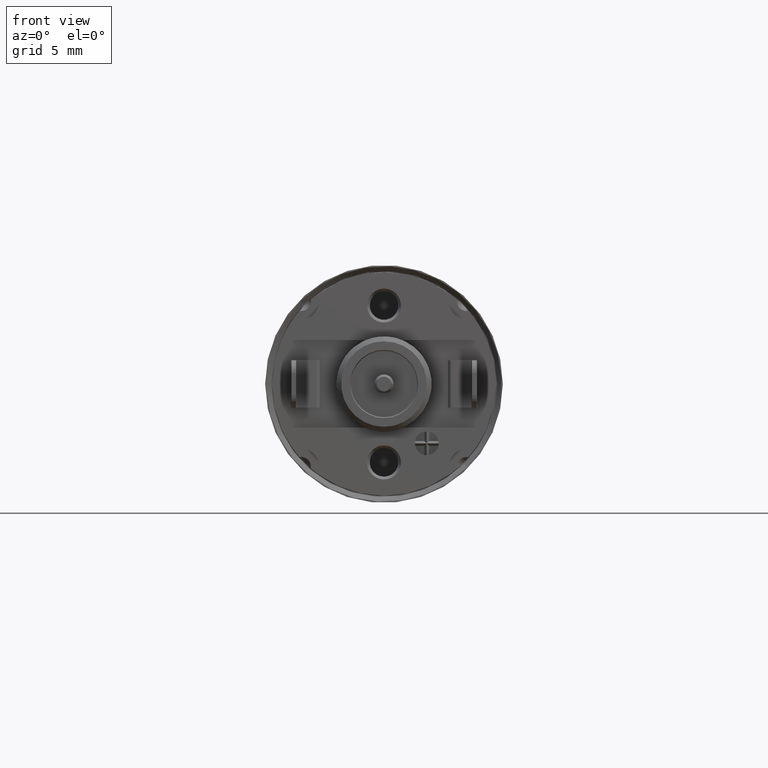
[diagram: clean part render]
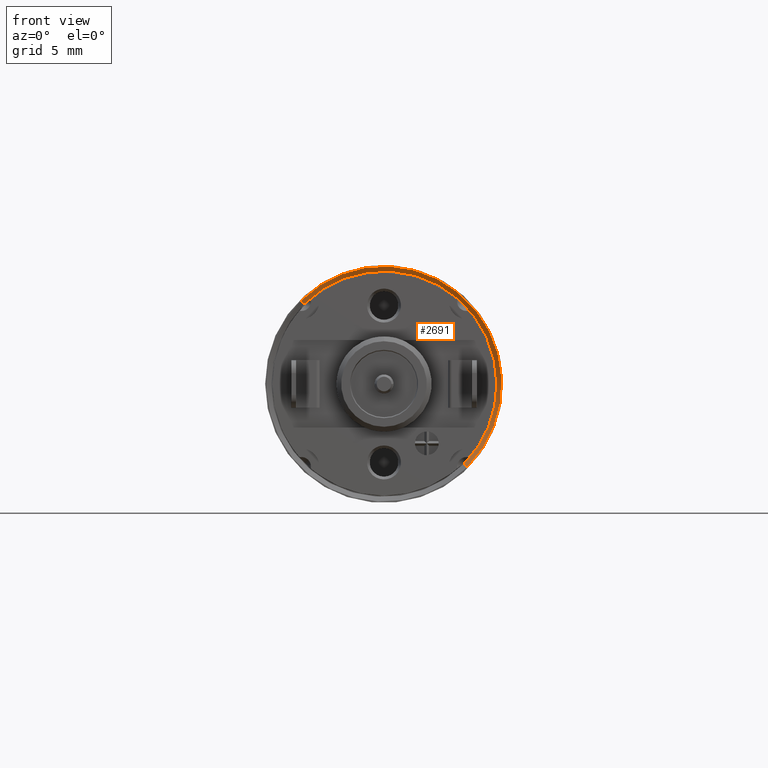
[diagram: same view with one face highlighted and labeled with its STEP entity id]
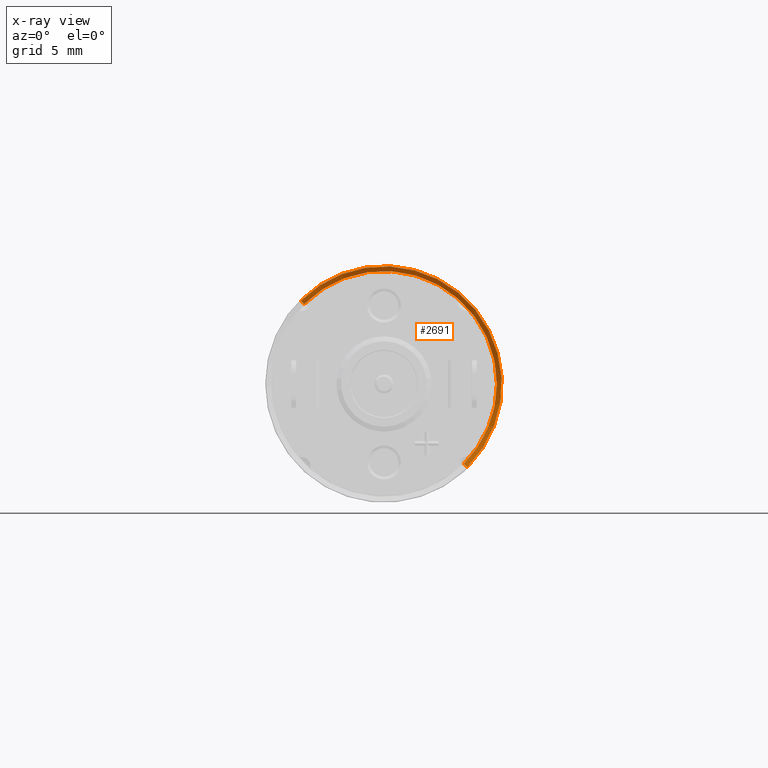
[diagram: x-ray of the same camera — body ghosted, the highlighted face saturated]
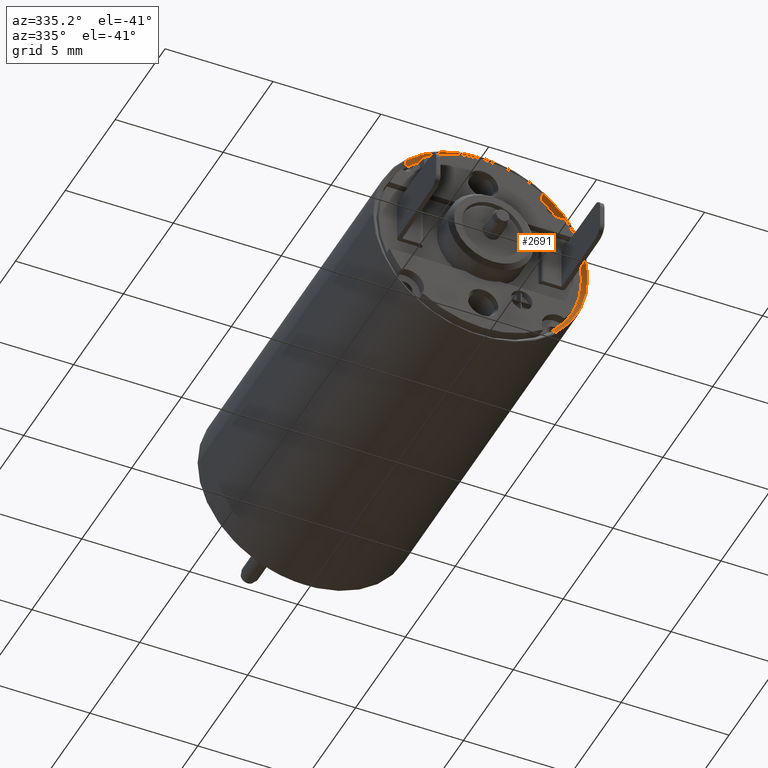
[diagram: same view with one face highlighted and labeled with its STEP entity id]
A machine part, front view. The second image highlights one B-rep face of the part: STEP entity #2691.
The next image is the same camera in x-ray: the body ghosted, the highlighted face saturated — about 0% of this face is hidden behind the body in this view.
A second angle (auxiliary view) of the same face is appended — the face is thin or edge-on in the first view.
In plain terms, the highlighted conical surface has half-angle 45 deg.
Its self-contained STEP definition (entity closure, byte-faithful):
#259=CARTESIAN_POINT('',(-1.161627270372E-14,-2.34E1,0.E0));
#260=DIRECTION('',(0.E0,1.E0,0.E0));
#261=DIRECTION('',(-7.071067811865E-1,0.E0,7.071067811865E-1));
#262=AXIS2_PLACEMENT_3D('',#259,#260,#261);
#279=DIRECTION('',(4.999999977530E-1,7.071067811865E-1,-5.000000022470E-1));
#280=VECTOR('',#279,2.828427121996E-1);
#281=CARTESIAN_POINT('',(-3.500178551006E0,-2.339999999981E1,3.500178582466E0));
#282=LINE('',#281,#280);
#283=DIRECTION('',(-4.999999977530E-1,7.071067811865E-1,5.000000022470E-1));
#284=VECTOR('',#283,2.828427121996E-1);
#285=CARTESIAN_POINT('',(3.500178551006E0,-2.339999999981E1,-3.500178582466E0));
#286=LINE('',#285,#284);
#297=CARTESIAN_POINT('',(0.E0,-2.32E1,0.E0));
#298=DIRECTION('',(0.E0,1.E0,0.E0));
#299=DIRECTION('',(-7.071067811865E-1,0.E0,7.071067811865E-1));
#300=AXIS2_PLACEMENT_3D('',#297,#298,#299);
#1748=CARTESIAN_POINT('',(0.E0,-2.32E1,0.E0));
#1749=DIRECTION('',(0.E0,1.E0,0.E0));
#1750=DIRECTION('',(1.E0,0.E0,0.E0));
#1751=AXIS2_PLACEMENT_3D('',#1748,#1749,#1750);
#2125=CARTESIAN_POINT('',(-3.500178566873E0,-2.34E1,3.500178566873E0));
#2126=CARTESIAN_POINT('',(3.500178566873E0,-2.34E1,-3.500178566873E0));
#2127=VERTEX_POINT('',#2125);
#2128=VERTEX_POINT('',#2126);
#2129=CARTESIAN_POINT('',(-3.358757210636E0,-2.32E1,3.358757210636E0));
#2130=CARTESIAN_POINT('',(4.75E0,-2.32E1,0.E0));
#2131=VERTEX_POINT('',#2129);
#2132=VERTEX_POINT('',#2130);
#2133=CARTESIAN_POINT('',(3.358757210636E0,-2.32E1,-3.358757210636E0));
#2135=VERTEX_POINT('',#2133);
#2675=CARTESIAN_POINT('',(-1.158794500923E-14,-2.33E1,0.E0));
#2676=DIRECTION('',(0.E0,-1.E0,0.E0));
#2677=DIRECTION('',(0.E0,0.E0,-1.E0));
#2678=AXIS2_PLACEMENT_3D('',#2675,#2676,#2677);
#2679=CONICAL_SURFACE('',#2678,4.85E0,4.5E1);
#2680=ORIENTED_EDGE('',*,*,#2656,.T.);
#2682=ORIENTED_EDGE('',*,*,#2681,.T.);
#2684=ORIENTED_EDGE('',*,*,#2683,.F.);
#2686=ORIENTED_EDGE('',*,*,#2685,.F.);
#2688=ORIENTED_EDGE('',*,*,#2687,.F.);
#2689=EDGE_LOOP('',(#2680,#2682,#2684,#2686,#2688));
#2690=FACE_OUTER_BOUND('',#2689,.F.);
#2691=ADVANCED_FACE('',(#2690),#2679,.F.);
#263=CIRCLE('',#262,4.95E0);
#301=CIRCLE('',#300,4.75E0);
#1752=CIRCLE('',#1751,4.75E0);
#2656=EDGE_CURVE('',#2127,#2128,#263,.T.);
#2681=EDGE_CURVE('',#2128,#2135,#286,.T.);
#2683=EDGE_CURVE('',#2132,#2135,#1752,.T.);
#2685=EDGE_CURVE('',#2131,#2132,#301,.T.);
#2687=EDGE_CURVE('',#2127,#2131,#282,.T.);